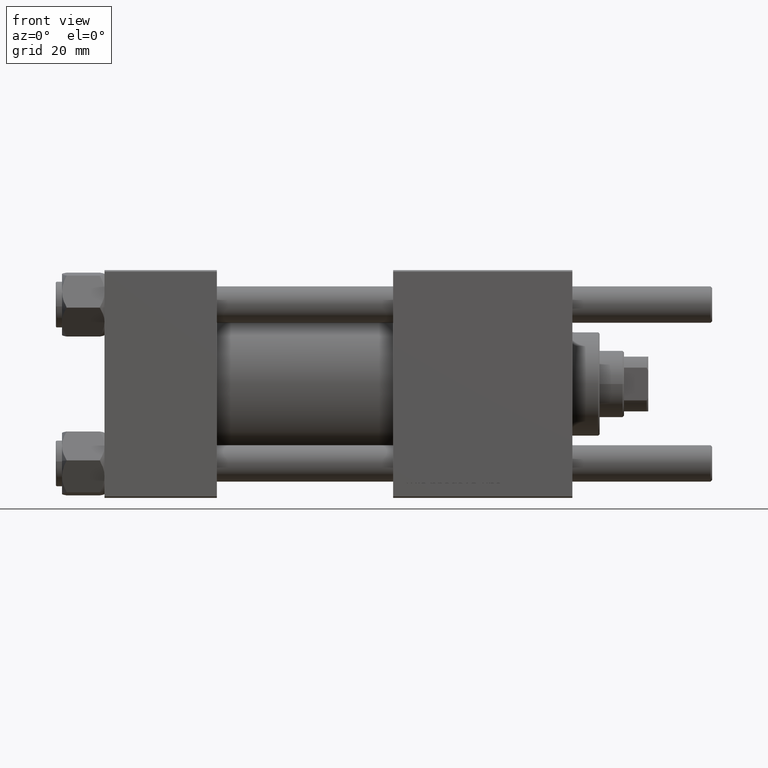
[diagram: clean part render]
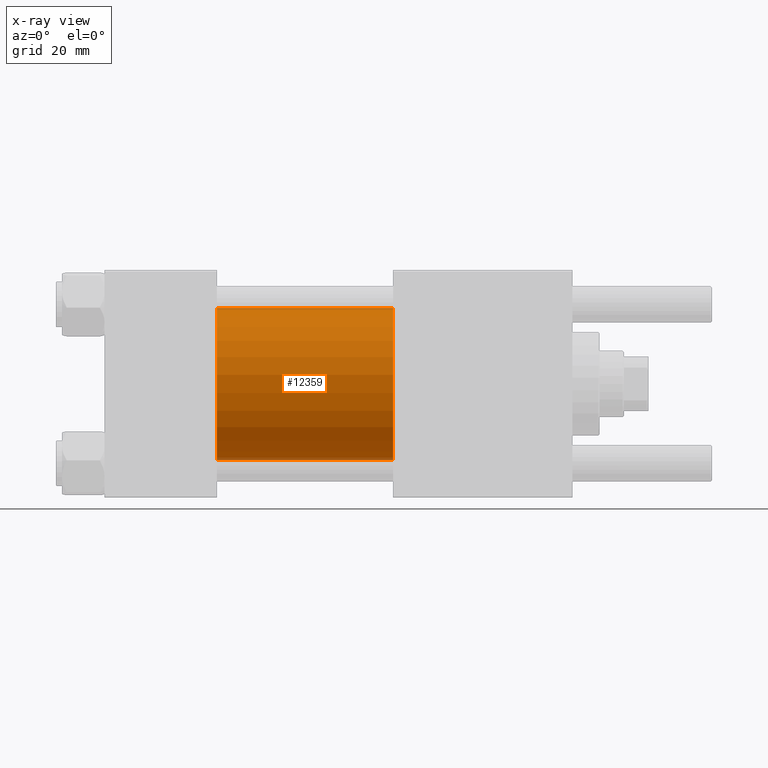
[diagram: x-ray — body ghosted, one internal face saturated and labeled with its STEP entity id]
A machine part, front view, then the same camera in x-ray: the body is ghosted and one INTERNAL B-rep face — a face not visible from any outside direction — is saturated and labeled: STEP entity #12359.
In plain terms, the highlighted cylindrical surface (partial cylindrical patch) has radius 25 mm, axis along (-1, -0, -0).
Its self-contained STEP definition (entity closure, byte-faithful):
#727 = CARTESIAN_POINT ( 'NONE',  ( 95.00000000000000000, 4.595317839031718093E-16, -25.00000000000000000 ) ) ;
#2251 = FACE_OUTER_BOUND ( 'NONE', #12511, .T. ) ;
#3345 = DIRECTION ( 'NONE',  ( 1.000000000000000000, 0.000000000000000000, 0.000000000000000000 ) ) ;
#3622 = DIRECTION ( 'NONE',  ( 0.000000000000000000, 0.000000000000000000, -1.000000000000000000 ) ) ;
#3927 = AXIS2_PLACEMENT_3D ( 'NONE', #17191, #39529, #13461 ) ;
#4823 = VECTOR ( 'NONE', #40256, 1000.000000000000000 ) ;
#5791 = ORIENTED_EDGE ( 'NONE', *, *, #13683, .F. ) ;
#6137 = CARTESIAN_POINT ( 'NONE',  ( 37.00000000000000000, 4.595317839031718093E-16, -25.00000000000000000 ) ) ;
#6807 = ORIENTED_EDGE ( 'NONE', *, *, #41553, .T. ) ;
#9585 = VERTEX_POINT ( 'NONE', #6137 ) ;
#9789 = AXIS2_PLACEMENT_3D ( 'NONE', #42610, #3345, #3622 ) ;
#11125 = CYLINDRICAL_SURFACE ( 'NONE', #30436, 25.00000000000000000 ) ;
#12359 = ADVANCED_FACE ( 'NONE', ( #2251 ), #11125, .F. ) ;
#12511 = EDGE_LOOP ( 'NONE', ( #6807, #50619, #5791, #37739 ) ) ;
#13461 = DIRECTION ( 'NONE',  ( 0.000000000000000000, 0.000000000000000000, -1.000000000000000000 ) ) ;
#13479 = EDGE_CURVE ( 'NONE', #29101, #9585, #30813, .T. ) ;
#13683 = EDGE_CURVE ( 'NONE', #43166, #9585, #43291, .T. ) ;
#16265 = DIRECTION ( 'NONE',  ( -1.000000000000000000, -0.000000000000000000, -0.000000000000000000 ) ) ;
#17191 = CARTESIAN_POINT ( 'NONE',  ( 37.00000000000000000, -2.602085213965210642E-15, 0.000000000000000000 ) ) ;
#18579 = DIRECTION ( 'NONE',  ( -1.000000000000000000, -0.000000000000000000, -0.000000000000000000 ) ) ;
#19318 = EDGE_CURVE ( 'NONE', #26827, #43166, #49271, .T. ) ;
#24901 = CARTESIAN_POINT ( 'NONE',  ( 95.00000000000000000, -2.602085213965210642E-15, 25.00000000000000000 ) ) ;
#26827 = VERTEX_POINT ( 'NONE', #24901 ) ;
#28593 = CARTESIAN_POINT ( 'NONE',  ( 95.00000000000000000, 4.595317839031718093E-16, -25.00000000000000000 ) ) ;
#28598 = CARTESIAN_POINT ( 'NONE',  ( 95.00000000000000000, -2.602085213965210642E-15, 0.000000000000000000 ) ) ;
#29101 = VERTEX_POINT ( 'NONE', #28593 ) ;
#30436 = AXIS2_PLACEMENT_3D ( 'NONE', #28598, #16265, #50981 ) ;
#30813 = LINE ( 'NONE', #727, #4823 ) ;
#32495 = VECTOR ( 'NONE', #18579, 1000.000000000000000 ) ;
#33934 = CARTESIAN_POINT ( 'NONE',  ( 37.00000000000000000, -2.602085213965210642E-15, 25.00000000000000000 ) ) ;
#37739 = ORIENTED_EDGE ( 'NONE', *, *, #19318, .F. ) ;
#39529 = DIRECTION ( 'NONE',  ( 1.000000000000000000, 0.000000000000000000, 0.000000000000000000 ) ) ;
#40256 = DIRECTION ( 'NONE',  ( -1.000000000000000000, -0.000000000000000000, -0.000000000000000000 ) ) ;
#41553 = EDGE_CURVE ( 'NONE', #26827, #29101, #45487, .T. ) ;
#42610 = CARTESIAN_POINT ( 'NONE',  ( 95.00000000000000000, -2.602085213965210642E-15, 0.000000000000000000 ) ) ;
#43166 = VERTEX_POINT ( 'NONE', #33934 ) ;
#43291 = CIRCLE ( 'NONE', #3927, 25.00000000000000000 ) ;
#45487 = CIRCLE ( 'NONE', #9789, 25.00000000000000000 ) ;
#45802 = CARTESIAN_POINT ( 'NONE',  ( 95.00000000000000000, -2.602085213965210642E-15, 25.00000000000000000 ) ) ;
#49271 = LINE ( 'NONE', #45802, #32495 ) ;
#50619 = ORIENTED_EDGE ( 'NONE', *, *, #13479, .T. ) ;
#50981 = DIRECTION ( 'NONE',  ( 0.000000000000000000, 0.000000000000000000, 1.000000000000000000 ) ) ;